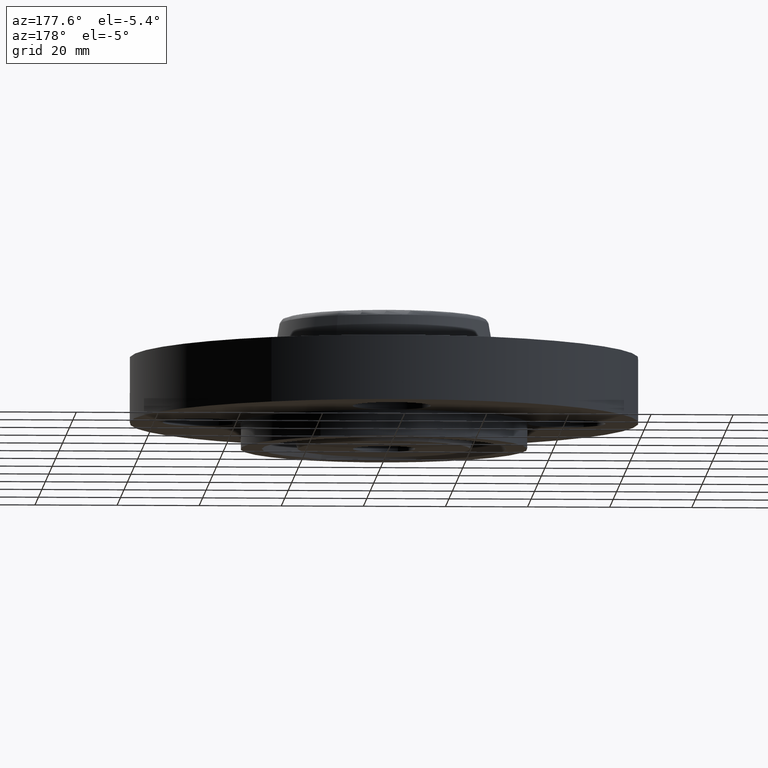
[diagram: clean part render]
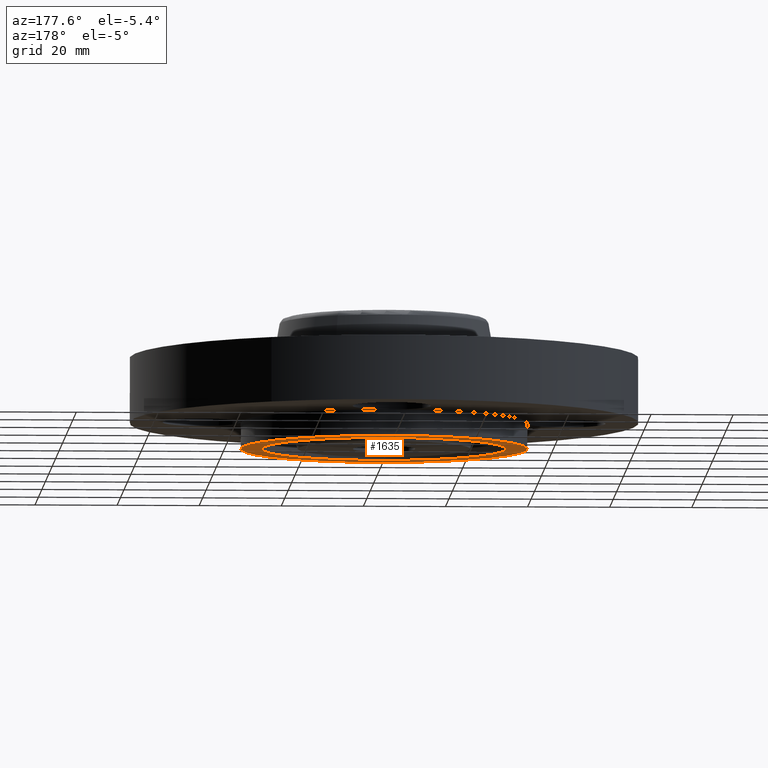
[diagram: same view with one face highlighted and labeled with its STEP entity id]
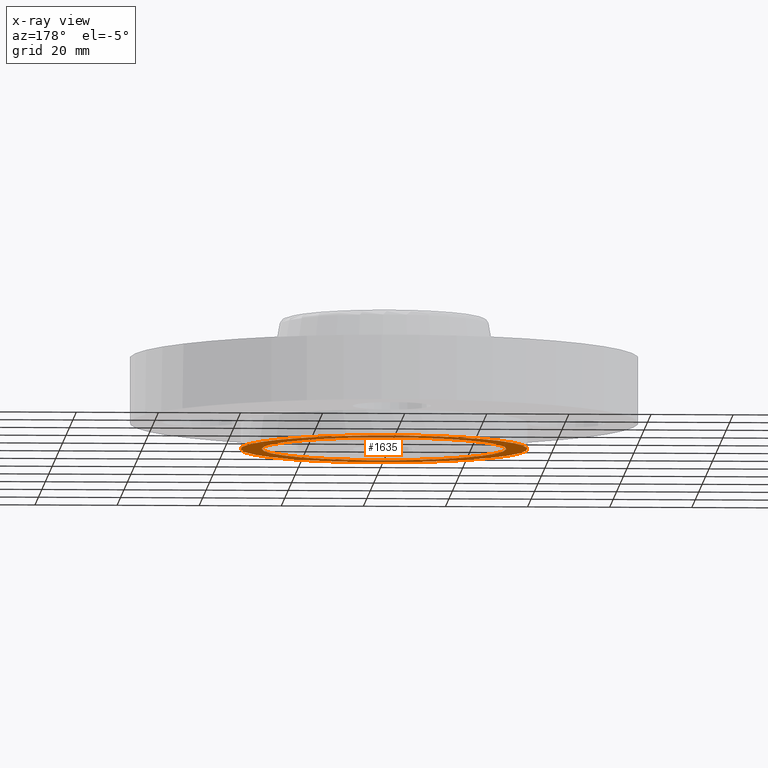
[diagram: x-ray of the same camera — body ghosted, the highlighted face saturated]
A machine part, auxiliary view. The second image highlights one B-rep face of the part: STEP entity #1635.
The next image is the same camera in x-ray: the body ghosted, the highlighted face saturated — about 0% of this face is hidden behind the body in this view.
In plain terms, the highlighted planar face has unit normal (0, 0, -1).
Its self-contained STEP definition (entity closure, byte-faithful):
#271=AXIS2_PLACEMENT_3D('Plane Axis2P3D',#268,#269,#270) ;
#1313=AXIS2_PLACEMENT_3D('Circle Axis2P3D',#1311,#1312,$) ;
#1351=AXIS2_PLACEMENT_3D('Circle Axis2P3D',#1349,#1350,$) ;
#1615=AXIS2_PLACEMENT_3D('Circle Axis2P3D',#1613,#1614,$) ;
#1624=AXIS2_PLACEMENT_3D('Circle Axis2P3D',#1622,#1623,$) ;
#268=CARTESIAN_POINT('Axis2P3D Location',(0.,0.299500000001,-0.250000000001)) ;
#1311=CARTESIAN_POINT('Axis2P3D Location',(0.,0.,-0.25)) ;
#1315=CARTESIAN_POINT('Vertex',(0.561886731257,-1.02852676255,-0.250000000001)) ;
#1317=CARTESIAN_POINT('Vertex',(-0.561886731257,1.02852676253,-0.250000000001)) ;
#1349=CARTESIAN_POINT('Axis2P3D Location',(0.,0.,-0.25)) ;
#1613=CARTESIAN_POINT('Axis2P3D Location',(2.79741234551E-016,-9.4424205987E-012,-0.250000000001)) ;
#1617=CARTESIAN_POINT('Vertex',(-0.659210115568,-1.20667602259,-0.250000000001)) ;
#1619=CARTESIAN_POINT('Vertex',(0.659210115568,1.20667602257,-0.250000000001)) ;
#1622=CARTESIAN_POINT('Axis2P3D Location',(-2.79741234551E-016,-9.44256046931E-012,-0.250000000001)) ;
#269=DIRECTION('Axis2P3D Direction',(0.,0.,-0.0393700787402)) ;
#270=DIRECTION('Axis2P3D XDirection',(0.0393700787402,0.,0.)) ;
#1312=DIRECTION('Axis2P3D Direction',(0.,-0.,-0.0393700787402)) ;
#1350=DIRECTION('Axis2P3D Direction',(0.,-0.,-0.0393700787402)) ;
#1614=DIRECTION('Axis2P3D Direction',(0.,0.,-0.0393700787402)) ;
#1623=DIRECTION('Axis2P3D Direction',(0.,0.,-0.0393700787402)) ;
#1628=ORIENTED_EDGE('',*,*,#1621,.T.) ;
#1629=ORIENTED_EDGE('',*,*,#1626,.T.) ;
#1632=ORIENTED_EDGE('',*,*,#1319,.F.) ;
#1633=ORIENTED_EDGE('',*,*,#1353,.F.) ;
#1634=FACE_BOUND('',#1631,.T.) ;
#1635=ADVANCED_FACE('PartBody',(#1630,#1634),#272,.T.) ;
#1314=CIRCLE('generated circle',#1313,1.172) ;
#1352=CIRCLE('generated circle',#1351,1.172) ;
#1616=CIRCLE('generated circle',#1615,1.37499999998) ;
#1625=CIRCLE('generated circle',#1624,1.37499999998) ;
#1319=EDGE_CURVE('',#1316,#1318,#1314,.T.) ;
#1353=EDGE_CURVE('',#1318,#1316,#1352,.T.) ;
#1621=EDGE_CURVE('',#1618,#1620,#1616,.T.) ;
#1626=EDGE_CURVE('',#1620,#1618,#1625,.T.) ;
#1627=EDGE_LOOP('',(#1628,#1629)) ;
#1631=EDGE_LOOP('',(#1632,#1633)) ;
#1630=FACE_OUTER_BOUND('',#1627,.T.) ;
#272=PLANE('',#271) ;
#1316=VERTEX_POINT('',#1315) ;
#1318=VERTEX_POINT('',#1317) ;
#1618=VERTEX_POINT('',#1617) ;
#1620=VERTEX_POINT('',#1619) ;